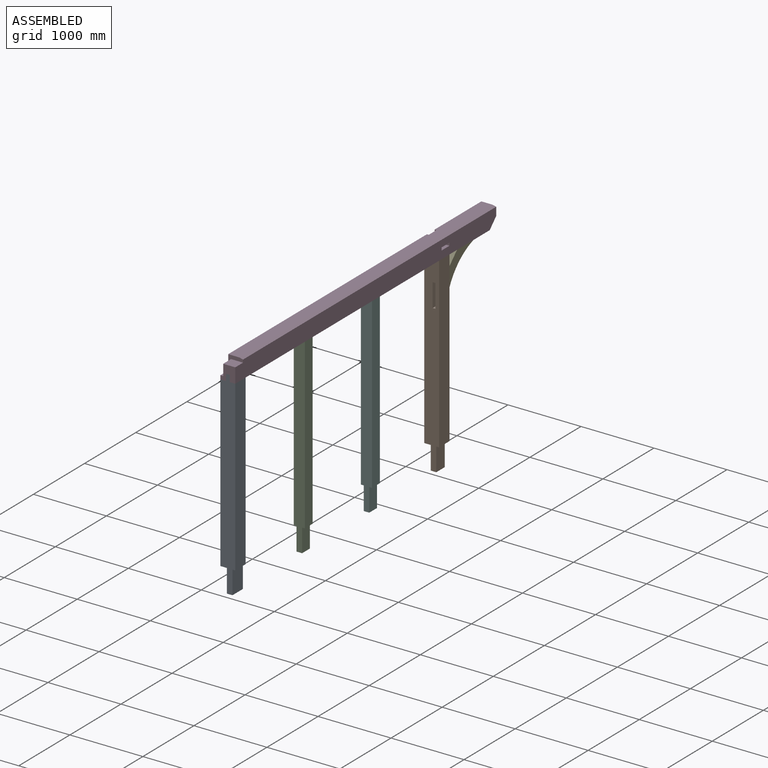
[diagram: assembled view]
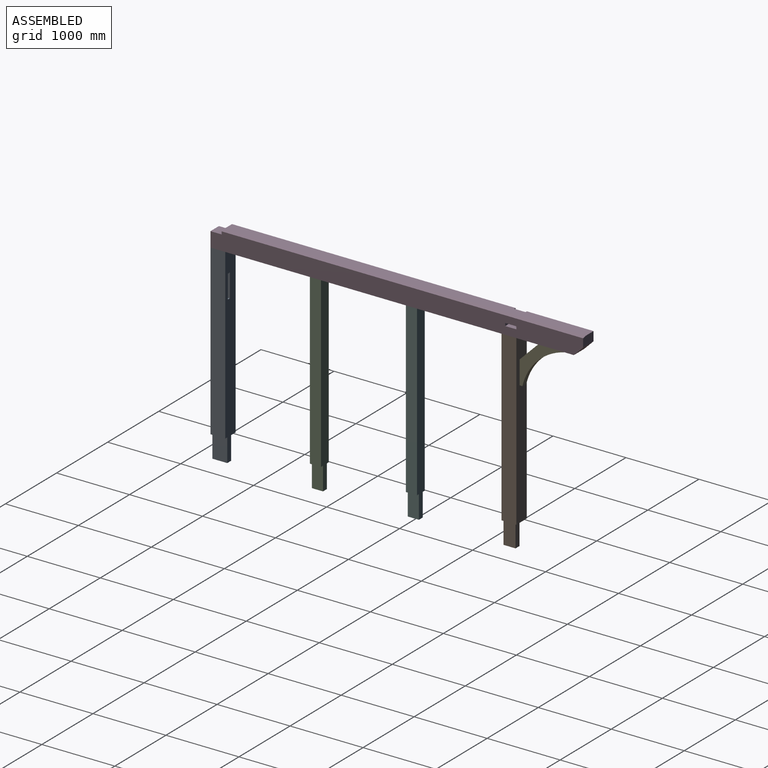
[diagram: assembled view, second angle]
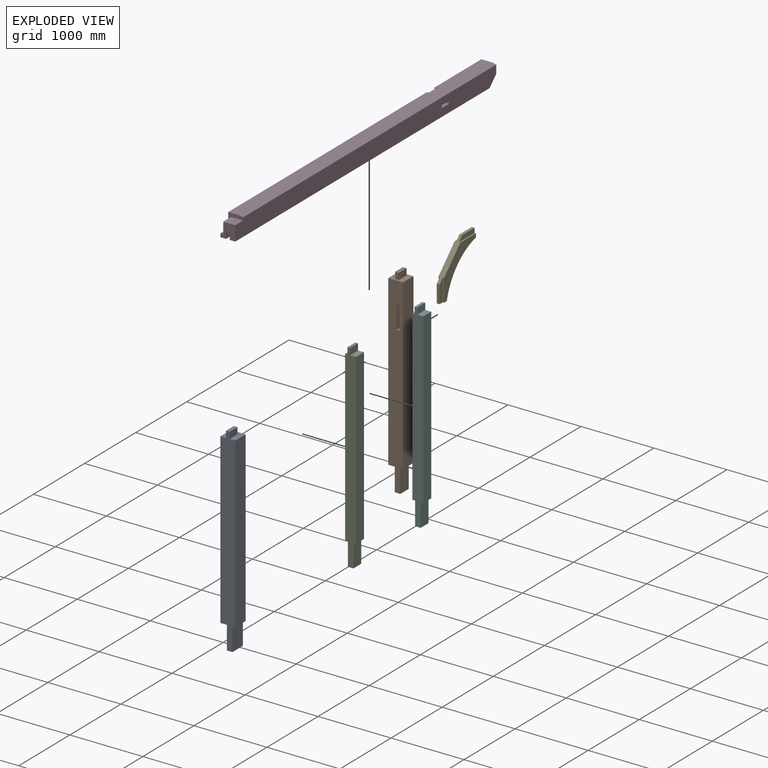
[diagram: exploded view]
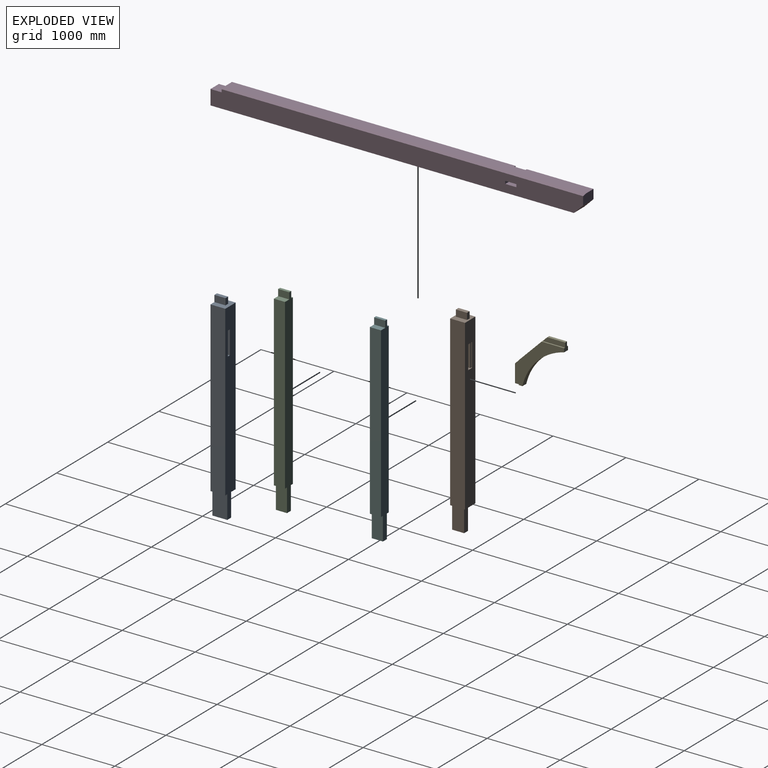
[diagram: exploded view, second angle]
ASSEMBLY  parts=6 mates=5
PART A: 19 faces, bbox 203.2x203.2x2717.8 mm
  f0: plane 2628.9x203.2mm, normal (0,-1,0), area 481635.8mm2, adj f4,f5,f6,f7,f8,f10,f11,f12
  f1: plane 152.4x88.9mm, normal (1,0,0), area 13548.4mm2, adj f2,f6,f9,f13
  f2: plane 152.4x50.8mm, normal (0,0,1), area 7741.9mm2, adj f1,f3,f9,f13
  f3: plane 152.4x88.9mm, normal (-1,0,0), area 13548.4mm2, adj f2,f6,f9,f13
  f4: plane 203.2x38.1mm, normal (0,0,-1), area 7741.9mm2, adj f0,f7,f9,f10
  f5: plane 2311.4x203.2mm, normal (1,0,0), area 469676.5mm2, adj f0,f6,f8,f9
  f6: plane 203.2x203.2mm, normal (0,0,1), area 33548.3mm2, adj f0,f1,f3,f5,f7,f9,f13
  f7: plane 2311.4x203.2mm, normal (-1,0,0), area 469676.5mm2, adj f0,f4,f6,f9
  f8: plane 203.2x88.9mm, normal (0,0,-1), area 18064.5mm2, adj f0,f5,f9,f11
  f9: plane 2717.8x203.2mm, normal (0,1,0), area 498386.1mm2, adj f1,f2,f3,f4,f5,f6,f7,f8
  f10: plane 317.5x203.2mm, normal (-1,0,0), area 64516mm2, adj f0,f4,f9,f12
  f11: plane 317.5x203.2mm, normal (1,0,0), area 64516mm2, adj f0,f8,f9,f12
  f12: plane 203.2x76.2mm, normal (0,0,-1), area 15483.8mm2, adj f0,f9,f10,f11
  f13: plane 88.9x50.8mm, normal (0,-1,0), area 4516.1mm2, adj f1,f2,f3,f6
  f14: plane 88.9x38.1mm, normal (0,0,-1), area 3387.1mm2, adj f0,f15,f17,f18
  f15: plane 321.11x88.9mm, normal (1,0,0), area 28546.4mm2, adj f0,f14,f16,f18
  f16: plane 88.9x38.1mm, normal (0,0,1), area 3387.1mm2, adj f0,f15,f17,f18
  f17: plane 321.11x88.9mm, normal (-1,0,0), area 28546.4mm2, adj f0,f14,f16,f18
  f18: plane 321.11x38.1mm, normal (0,-1,0), area 12234.2mm2, adj f14,f15,f16,f17
PART B: 34 faces, bbox 203.2x203.2x2717.8 mm
  f0: plane 2628.9x203.2mm, normal (0,-1,0), area 481635.8mm2, adj f11,f12,f13,f14,f15,f17,f18,f29
  f1: plane 152.4x88.9mm, normal (1,0,0), area 13548.4mm2, adj f3,f13,f27,f28
  f2: plane 152.4x88.9mm, normal (-1,0,0), area 13548.4mm2, adj f3,f13,f27,f28
  f3: plane 152.4x50.8mm, normal (0,0,1), area 7741.9mm2, adj f1,f2,f27,f28
  f4: plane 2311.4x203.2mm, normal (0,1,0), area 445208.1mm2, adj f11,f12,f13,f14,f22,f23,f24,f25
  f5: plane 308.41x63.5mm, normal (1,0,0), area 13040.6mm2, adj f6,f8,f9,f21,f22,f26
  f6: plane 63.5x38.1mm, normal (0,0,-1), area 2258.1mm2, adj f5,f7,f8,f10,f21,f26
  f7: plane 308.41x63.5mm, normal (-1,0,0), area 19583.8mm2, adj f6,f21,f22,f26
  f8: plane 321.11x88.9mm, normal (0,-1,0), area 26910.6mm2, adj f5,f6,f9,f10,f11,f19
  f9: plane 88.9x38.1mm, normal (0,0,1), area 3225.8mm2, adj f5,f8,f10,f11,f20,f21
  f10: plane 321.11x38.1mm, normal (-1,0,0), area 5691mm2, adj f6,f8,f9,f19,f20,f21
  f11: plane 2311.4x203.2mm, normal (-1,0,0), area 457442.3mm2, adj f0,f4,f8,f9,f13,f14,f19,f20
  f12: plane 2311.4x203.2mm, normal (1,0,0), area 469676.5mm2, adj f0,f4,f13,f14
  f13: plane 203.2x203.2mm, normal (0,0,1), area 33548.3mm2, adj f0,f1,f2,f4,f11,f12,f27,f28
  f14: plane 203.2x203.2mm, normal (0,0,-1), area 28709.6mm2, adj f0,f4,f11,f12,f15,f16,f17
  f15: plane 317.5x165.1mm, normal (-1,0,0), area 52419.2mm2, adj f0,f14,f16,f18
  f16: plane 317.5x76.2mm, normal (0,1,0), area 24193.5mm2, adj f14,f15,f17,f18
  f17: plane 317.5x165.1mm, normal (1,0,0), area 52419.2mm2, adj f0,f14,f16,f18
  f18: plane 165.1x76.2mm, normal (0,0,-1), area 12580.6mm2, adj f0,f15,f16,f17
  f19: plane 88.9x38.1mm, normal (0,0,-1), area 3387.1mm2, adj f8,f10,f11,f20
  f20: plane 321.11x88.9mm, normal (0,1,0), area 28546.4mm2, adj f9,f10,f11,f19
  f21: plane 308.41x38.1mm, normal (0,1,0), area 10114.5mm2, adj f5,f6,f7,f9,f10,f22
  f22: plane 76.2x76.2mm, normal (0,0,1), area 3387.1mm2, adj f4,f5,f7,f21,f23,f25,f26
  f23: plane 321.11x12.7mm, normal (1,0,0), area 4078.1mm2, adj f4,f22,f24,f26
  f24: plane 76.2x12.7mm, normal (0,0,-1), area 967.7mm2, adj f4,f23,f25,f26
  f25: plane 321.11x12.7mm, normal (-1,0,0), area 4078.1mm2, adj f4,f22,f24,f26
  f26: plane 321.11x76.2mm, normal (0,1,0), area 12718mm2, adj f5,f6,f7,f22,f23,f24,f25
  f27: plane 88.9x50.8mm, normal (0,-1,0), area 4516.1mm2, adj f1,f2,f3,f13
  f28: plane 88.9x50.8mm, normal (0,1,0), area 4516.1mm2, adj f1,f2,f3,f13
  f29: plane 88.9x38.1mm, normal (0,0,-1), area 3387.1mm2, adj f0,f30,f32,f33
  f30: plane 321.11x88.9mm, normal (1,0,0), area 28546.4mm2, adj f0,f29,f31,f33
  f31: plane 88.9x38.1mm, normal (0,0,1), area 3387.1mm2, adj f0,f30,f32,f33
  f32: plane 321.11x88.9mm, normal (-1,0,0), area 28546.4mm2, adj f0,f29,f31,f33
  f33: plane 321.11x38.1mm, normal (0,-1,0), area 12234.2mm2, adj f29,f30,f31,f32
PART C: 14 faces, bbox 152.4x152.4x2717.8 mm
  f0: plane 152.4x38.1mm, normal (0,0,-1), area 5806.4mm2, adj f6,f9,f10,f11
  f1: plane 152.4x31.75mm, normal (0,0,1), area 4838.7mm2, adj f2,f8,f9,f10
  f2: plane 152.4x88.9mm, normal (1,0,0), area 13548.4mm2, adj f1,f3,f9,f10
  f3: plane 152.4x38.1mm, normal (0,0,1), area 5806.4mm2, adj f2,f4,f9,f10
  f4: plane 152.4x88.9mm, normal (-1,0,0), area 13548.4mm2, adj f3,f5,f9,f10
  f5: plane 152.4x82.55mm, normal (0,0,1), area 12580.6mm2, adj f4,f6,f9,f10
  f6: plane 2311.4x152.4mm, normal (-1,0,0), area 352257.4mm2, adj f0,f5,f9,f10
  f7: plane 152.4x38.1mm, normal (0,0,-1), area 5806.4mm2, adj f8,f9,f10,f12
  f8: plane 2311.4x152.4mm, normal (1,0,0), area 352257.4mm2, adj f1,f7,f9,f10
  f9: plane 2717.8x152.4mm, normal (0,-1,0), area 379837.9mm2, adj f0,f1,f2,f3,f4,f5,f6,f7
  f10: plane 2717.8x152.4mm, normal (0,1,0), area 379837.9mm2, adj f0,f1,f2,f3,f4,f5,f6,f7
  f11: plane 317.5x152.4mm, normal (-1,0,0), area 48387mm2, adj f0,f9,f10,f13
  f12: plane 317.5x152.4mm, normal (1,0,0), area 48387mm2, adj f7,f9,f10,f13
  f13: plane 152.4x76.2mm, normal (0,0,-1), area 11612.9mm2, adj f9,f10,f11,f12
PART D: 57 faces, bbox 203.2x254x5105.4 mm
  f0: plane 203.2x203.2mm, normal (0,0,1), area 30967.7mm2, adj f1,f3,f9,f10,f37,f39,f40,f55
  f1: plane 165.1x152.4mm, normal (0,1,0), area 25161.2mm2, adj f0,f10,f44,f55
  f2: plane 203.2x127mm, normal (0,0,-1), area 25483.8mm2, adj f9,f10,f11,f41,f54
  f3: plane 4978.4x203.2mm, normal (0,-1,0), area 935577.5mm2, adj f0,f9,f10,f12,f13,f14,f15,f17
  f4: plane 308.41x63.5mm, normal (-1,0,0), area 19583.8mm2, adj f5,f48,f49,f50
  f5: plane 63.5x38.1mm, normal (0,0,-1), area 2419.3mm2, adj f4,f6,f49,f50
  f6: plane 308.41x63.5mm, normal (1,0,0), area 19583.8mm2, adj f5,f48,f49,f50
  f7: plane 177.8x152.4mm, normal (0,-1,0), area 27096.7mm2, adj f10,f42,f43,f45
  f8: plane 177.8x152.4mm, normal (0,1,0), area 27096.7mm2, adj f10,f42,f43,f47
  f9: plane 5105.4x254mm, normal (-1,0,0), area 1226771.7mm2, adj f0,f2,f3,f11,f41,f42,f43,f44
  f10: plane 5105.4x241.3mm, normal (1,0,0), area 1212255.6mm2, adj f0,f1,f2,f3,f7,f8,f41,f42
  f11: plane 4953x152.4mm, normal (0,1,0), area 750966.2mm2, adj f2,f9,f42,f43,f44,f45,f54
  f12: plane 88.9x38.1mm, normal (0,0,-1), area 3387.1mm2, adj f3,f13,f15,f16
  f13: plane 321.11x88.9mm, normal (1,0,0), area 28546.4mm2, adj f3,f12,f14,f16
  f14: plane 88.9x38.1mm, normal (0,0,1), area 3387.1mm2, adj f3,f13,f15,f16
  f15: plane 321.11x88.9mm, normal (-1,0,0), area 28546.4mm2, adj f3,f12,f14,f16
  f16: plane 321.11x38.1mm, normal (0,-1,0), area 12234.2mm2, adj f12,f13,f14,f15
  f17: plane 152.4x88.9mm, normal (1,0,0), area 13548.4mm2, adj f3,f18,f20,f21
  f18: plane 88.9x50.8mm, normal (0,0,1), area 4516.1mm2, adj f3,f17,f19,f21
  f19: plane 152.4x88.9mm, normal (-1,0,0), area 13548.4mm2, adj f3,f18,f20,f21
  f20: plane 88.9x50.8mm, normal (0,0,-1), area 4516.1mm2, adj f3,f17,f19,f21
  f21: plane 152.4x50.8mm, normal (0,-1,0), area 7741.9mm2, adj f17,f18,f19,f20
  f22: plane 152.4x88.9mm, normal (1,0,0), area 13548.4mm2, adj f3,f23,f25,f26
  f23: plane 88.9x38.1mm, normal (0,0,1), area 3387.1mm2, adj f3,f22,f24,f26
  f24: plane 152.4x88.9mm, normal (-1,0,0), area 13548.4mm2, adj f3,f23,f25,f26
  f25: plane 88.9x38.1mm, normal (0,0,-1), area 3387.1mm2, adj f3,f22,f24,f26
  f26: plane 152.4x38.1mm, normal (0,-1,0), area 5806.4mm2, adj f22,f23,f24,f25
  f27: plane 152.4x88.9mm, normal (1,0,0), area 13548.4mm2, adj f3,f28,f30,f31
  f28: plane 88.9x38.1mm, normal (0,0,1), area 3387.1mm2, adj f3,f27,f29,f31
  f29: plane 152.4x88.9mm, normal (-1,0,0), area 13548.4mm2, adj f3,f28,f30,f31
  f30: plane 88.9x38.1mm, normal (0,0,-1), area 3387.1mm2, adj f3,f27,f29,f31
  f31: plane 152.4x38.1mm, normal (0,-1,0), area 5806.4mm2, adj f27,f28,f29,f30
  f32: plane 321.11x88.9mm, normal (1,0,0), area 28546.4mm2, adj f3,f33,f35,f36
  f33: plane 88.9x38.1mm, normal (0,0,1), area 3387.1mm2, adj f3,f32,f34,f36
  f34: plane 321.11x88.9mm, normal (-1,0,0), area 28546.4mm2, adj f3,f33,f35,f36
  f35: plane 88.9x38.1mm, normal (0,0,-1), area 3387.1mm2, adj f3,f32,f34,f36
  f36: plane 321.11x38.1mm, normal (0,-1,0), area 12234.2mm2, adj f32,f33,f34,f35
  f37: plane 152.4x88.9mm, normal (1,0,0), area 13548.4mm2, adj f0,f3,f38,f40
  f38: plane 88.9x50.8mm, normal (0,0,1), area 4516.1mm2, adj f3,f37,f39,f40
  f39: plane 152.4x88.9mm, normal (-1,0,0), area 13548.4mm2, adj f0,f3,f38,f40
  f40: plane 152.4x50.8mm, normal (0,-1,0), area 7741.9mm2, adj f0,f37,f38,f39
  f41: plane 203.2x127mm, normal (0,-0.71,-0.71), area 36495.8mm2, adj f2,f3,f9,f10
  f42: plane 203.2x203.2mm, normal (0,0,-1), area 11935.5mm2, adj f7,f8,f9,f10,f11,f45,f46,f47
  f43: plane 203.2x203.2mm, normal (0,0,1), area 11935.5mm2, adj f7,f8,f9,f10,f11,f45,f46,f47
  f44: plane 203.2x203.2mm, normal (0,0,1), area 15806.4mm2, adj f1,f9,f10,f11,f54,f55,f56
  f45: plane 152.4x107.95mm, normal (-1,0,0), area 16451.6mm2, adj f7,f11,f42,f43
  f46: plane 152.4x25.4mm, normal (0,1,0), area 3871mm2, adj f9,f42,f43,f47
  f47: plane 152.4x57.15mm, normal (-1,0,0), area 8709.7mm2, adj f8,f42,f43,f46
  f48: plane 76.2x76.2mm, normal (0,0,1), area 3387.1mm2, adj f3,f4,f6,f49,f50,f51,f52
  f49: plane 308.41x38.1mm, normal (0,-1,0), area 11750.3mm2, adj f4,f5,f6,f48
  f50: plane 321.11x76.2mm, normal (0,-1,0), area 12718mm2, adj f4,f5,f6,f48,f51,f52,f53
  f51: plane 321.11x12.7mm, normal (1,0,0), area 4078.1mm2, adj f3,f48,f50,f53
  f52: plane 321.11x12.7mm, normal (-1,0,0), area 4078.1mm2, adj f3,f48,f50,f53
  f53: plane 76.2x12.7mm, normal (0,0,-1), area 967.7mm2, adj f3,f50,f51,f52
  f54: plane 4953x50.8mm, normal (0.24,0.97,0), area 259356.1mm2, adj f2,f10,f11,f44
  f55: plane 152.4x152.4mm, normal (-1,0,0), area 23225.8mm2, adj f0,f1,f44,f56
  f56: plane 152.4x38.1mm, normal (0,1,0), area 5806.4mm2, adj f0,f9,f44,f55
PART E: 16 faces, bbox 254x76.2x969.9 mm
  f0: plane 218.08x218.08mm, normal (0.71,0,-0.71), area 5875.2mm2, adj f3,f5,f9,f15
  f1: plane 218.08x218.08mm, normal (0.71,0,0.71), area 5875.2mm2, adj f5,f7,f9,f12
  f2: cylinder r=771.52mm len=808.22mm, axis (0,1,0), area 64820.2mm2, adj f3,f7,f8,f9
  f3: plane 80.82x80.82mm, normal (-0.71,0,-0.71), area 6290.3mm2, adj f0,f2,f4,f8,f9,f13,f14,f15
  f4: plane 218.08x218.08mm, normal (0.71,0,-0.71), area 5875.2mm2, adj f3,f5,f8,f14
  f5: plane 623.51x76.2mm, normal (1,0,0), area 40668.4mm2, adj f0,f1,f4,f6,f8,f9,f10,f11
  f6: plane 218.08x218.08mm, normal (0.71,0,0.71), area 5875.2mm2, adj f5,f7,f8,f11
  f7: plane 80.82x80.82mm, normal (-0.71,0,0.71), area 6290.3mm2, adj f1,f2,f6,f8,f9,f10,f11,f12
  f8: plane 880.06x254mm, normal (0,-1,0), area 112126.2mm2, adj f2,f3,f4,f5,f6,f7
  f9: plane 880.06x254mm, normal (0,1,0), area 112126.2mm2, adj f0,f1,f2,f3,f5,f7
  f10: plane 173.18x173.18mm, normal (0.71,0,0.71), area 9331.1mm2, adj f5,f7,f11,f12
  f11: plane 262.98x218.08mm, normal (0,-1,0), area 17567.9mm2, adj f5,f6,f7,f10
  f12: plane 262.98x218.08mm, normal (0,1,0), area 17567.9mm2, adj f1,f5,f7,f10
  f13: plane 173.18x173.18mm, normal (0.71,0,-0.71), area 9331.1mm2, adj f3,f5,f14,f15
  f14: plane 262.98x218.08mm, normal (0,-1,0), area 17567.9mm2, adj f3,f4,f5,f13
  f15: plane 262.98x218.08mm, normal (0,1,0), area 17567.9mm2, adj f0,f3,f5,f13
PART F: same geometry as C
PLACE A rot(axis=(0,0,1),180deg) t=(-102.26,-4089.04,1136.63)mm
PLACE B t=(-102.26,-101.24,1136.63)mm fixed
PLACE C rot(axis=(0,0,1),180deg) t=(-76.86,-2752.36,1136.63)mm
PLACE D rot(axis=(1,0,0),90deg) t=(-102.26,-1637.94,2374.88)mm
PLACE E rot(axis=(-0.36,-0.36,-0.86),98.4deg) t=(-102.26,135.96,1915.37)mm
PLACE F rot(axis=(0,0,1),180deg) t=(-76.86,-1437.91,1136.63)mm
MATE fastened F.f3 <-> D.f26  axis (0,0,1) through (-102.26,-1437.91,2336.78)mm
MATE fastened A.f2 <-> D.f40  axis (0,0,1) through (-102.26,-4114.44,2336.78)mm
MATE fastened C.f3 <-> D.f31  axis (0,0,1) through (-102.26,-2752.36,2336.78)mm
MATE fastened E.f10 <-> D.f49  axis (0,0,1) through (-102.26,487.51,2324.08)mm
MATE fastened B.f3 <-> D.f21  axis (0,0,1) through (-102.26,-101.24,2336.78)mm
